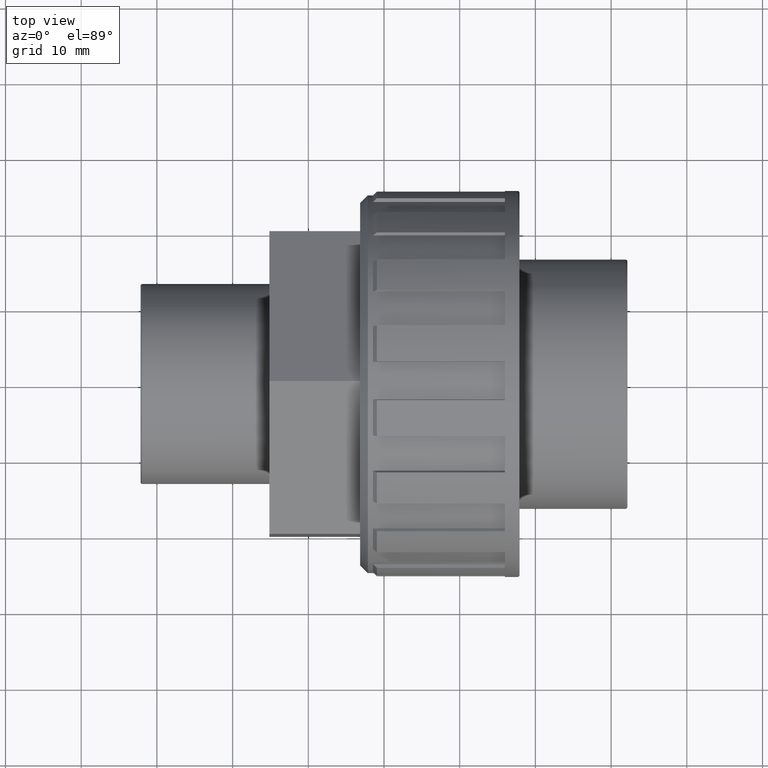
[diagram: clean part render]
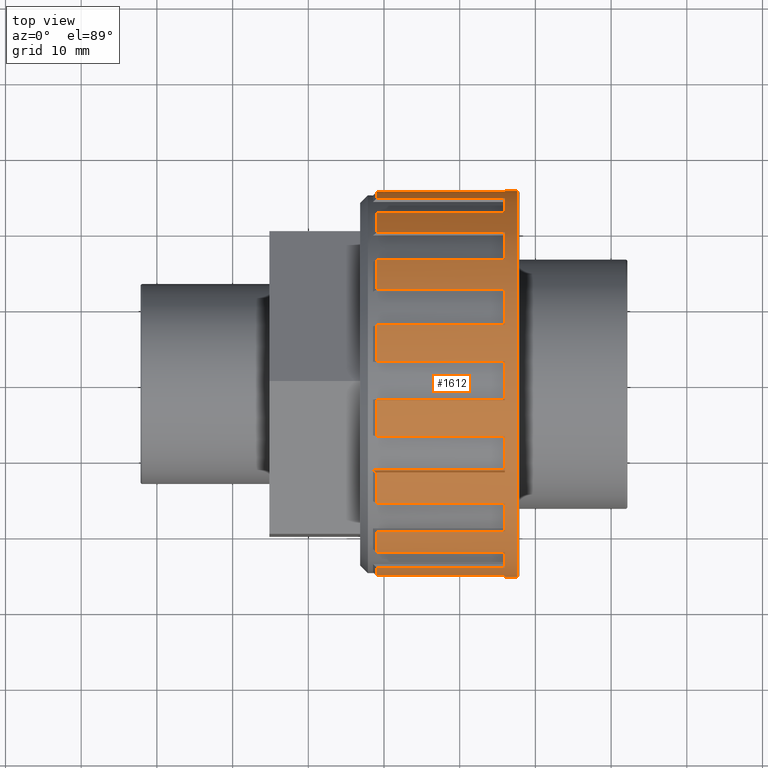
[diagram: same view with one face highlighted and labeled with its STEP entity id]
A machine part, top view. The second image highlights one B-rep face of the part: STEP entity #1612.
In plain terms, the highlighted cylindrical surface (bore or boss wall) has radius 25.5 mm, axis along (-1, -0, 0).
Its self-contained STEP definition (entity closure, byte-faithful):
#37=FACE_BOUND('',#295,.T.);
#59=CYLINDRICAL_SURFACE('',#1736,25.5);
#68=CIRCLE('',#1665,25.5);
#70=CIRCLE('',#1670,25.5);
#72=CIRCLE('',#1675,25.5);
#74=CIRCLE('',#1680,25.5);
#76=CIRCLE('',#1685,25.5);
#78=CIRCLE('',#1690,25.5);
#80=CIRCLE('',#1695,25.5);
#82=CIRCLE('',#1700,25.5);
#84=CIRCLE('',#1705,25.5);
#86=CIRCLE('',#1710,25.5);
#88=CIRCLE('',#1715,25.5);
#90=CIRCLE('',#1720,25.5);
#92=CIRCLE('',#1725,25.5);
#94=CIRCLE('',#1730,25.5);
#96=CIRCLE('',#1735,25.5);
#97=CIRCLE('',#1737,25.5);
#98=CIRCLE('',#1738,25.5);
#99=CIRCLE('',#1739,25.5);
#100=CIRCLE('',#1740,25.5);
#101=CIRCLE('',#1741,25.5);
#102=CIRCLE('',#1742,25.5);
#103=CIRCLE('',#1743,25.5);
#104=CIRCLE('',#1744,25.5);
#105=CIRCLE('',#1745,25.5);
#106=CIRCLE('',#1746,25.5);
#107=CIRCLE('',#1747,25.5);
#108=CIRCLE('',#1748,25.5);
#109=CIRCLE('',#1749,25.5);
#110=CIRCLE('',#1750,25.5);
#111=CIRCLE('',#1751,25.5);
#112=CIRCLE('',#1752,25.5);
#113=CIRCLE('',#1753,25.5);
#114=CIRCLE('',#1754,25.5);
#202=FACE_OUTER_BOUND('',#294,.T.);
#294=EDGE_LOOP('',(#1243,#1244,#1245,#1246,#1247,#1248,#1249,#1250,#1251,
#1252,#1253,#1254,#1255,#1256,#1257,#1258,#1259,#1260,#1261,#1262,#1263,
#1264,#1265,#1266,#1267,#1268,#1269,#1270,#1271,#1272,#1273,#1274,#1275,
#1276,#1277,#1278,#1279,#1280,#1281,#1282,#1283,#1284,#1285,#1286,#1287,
#1288,#1289,#1290,#1291,#1292,#1293,#1294,#1295,#1296,#1297,#1298,#1299,
#1300,#1301,#1302,#1303,#1304,#1305,#1306));
#295=EDGE_LOOP('',(#1307));
#376=LINE('',#2373,#522);
#382=LINE('',#2385,#528);
#384=LINE('',#2394,#530);
#390=LINE('',#2406,#536);
#392=LINE('',#2415,#538);
#398=LINE('',#2427,#544);
#400=LINE('',#2436,#546);
#406=LINE('',#2448,#552);
#408=LINE('',#2457,#554);
#414=LINE('',#2469,#560);
#416=LINE('',#2478,#562);
#422=LINE('',#2490,#568);
#424=LINE('',#2499,#570);
#430=LINE('',#2511,#576);
#432=LINE('',#2520,#578);
#438=LINE('',#2532,#584);
#440=LINE('',#2541,#586);
#446=LINE('',#2553,#592);
#448=LINE('',#2562,#594);
#454=LINE('',#2574,#600);
#456=LINE('',#2583,#602);
#462=LINE('',#2595,#608);
#464=LINE('',#2604,#610);
#470=LINE('',#2616,#616);
#472=LINE('',#2625,#618);
#478=LINE('',#2637,#624);
#480=LINE('',#2646,#626);
#486=LINE('',#2658,#632);
#488=LINE('',#2667,#634);
#494=LINE('',#2679,#640);
#495=LINE('',#2701,#641);
#496=LINE('',#2705,#642);
#522=VECTOR('',#1866,16.905);
#528=VECTOR('',#1874,16.905);
#530=VECTOR('',#1884,16.905);
#536=VECTOR('',#1892,16.905);
#538=VECTOR('',#1902,16.905);
#544=VECTOR('',#1910,16.905);
#546=VECTOR('',#1920,16.905);
#552=VECTOR('',#1928,16.905);
#554=VECTOR('',#1938,16.905);
#560=VECTOR('',#1946,16.905);
#562=VECTOR('',#1956,16.905);
#568=VECTOR('',#1964,16.905);
#570=VECTOR('',#1974,16.905);
#576=VECTOR('',#1982,16.905);
#578=VECTOR('',#1992,16.905);
#584=VECTOR('',#2000,16.905);
#586=VECTOR('',#2010,16.905);
#592=VECTOR('',#2018,16.905);
#594=VECTOR('',#2028,16.905);
#600=VECTOR('',#2036,16.905);
#602=VECTOR('',#2046,16.905);
#608=VECTOR('',#2054,16.905);
#610=VECTOR('',#2064,16.905);
#616=VECTOR('',#2072,16.905);
#618=VECTOR('',#2082,16.905);
#624=VECTOR('',#2090,16.905);
#626=VECTOR('',#2100,16.905);
#632=VECTOR('',#2108,16.905);
#634=VECTOR('',#2118,16.905);
#640=VECTOR('',#2126,16.905);
#641=VECTOR('',#2165,16.905);
#642=VECTOR('',#2168,16.905);
#661=VERTEX_POINT('',#2369);
#663=VERTEX_POINT('',#2372);
#666=VERTEX_POINT('',#2379);
#668=VERTEX_POINT('',#2383);
#669=VERTEX_POINT('',#2390);
#671=VERTEX_POINT('',#2393);
#674=VERTEX_POINT('',#2400);
#676=VERTEX_POINT('',#2404);
#677=VERTEX_POINT('',#2411);
#679=VERTEX_POINT('',#2414);
#682=VERTEX_POINT('',#2421);
#684=VERTEX_POINT('',#2425);
#685=VERTEX_POINT('',#2432);
#687=VERTEX_POINT('',#2435);
#690=VERTEX_POINT('',#2442);
#692=VERTEX_POINT('',#2446);
#693=VERTEX_POINT('',#2453);
#695=VERTEX_POINT('',#2456);
#698=VERTEX_POINT('',#2463);
#700=VERTEX_POINT('',#2467);
#701=VERTEX_POINT('',#2474);
#703=VERTEX_POINT('',#2477);
#706=VERTEX_POINT('',#2484);
#708=VERTEX_POINT('',#2488);
#709=VERTEX_POINT('',#2495);
#711=VERTEX_POINT('',#2498);
#714=VERTEX_POINT('',#2505);
#716=VERTEX_POINT('',#2509);
#717=VERTEX_POINT('',#2516);
#719=VERTEX_POINT('',#2519);
#722=VERTEX_POINT('',#2526);
#724=VERTEX_POINT('',#2530);
#725=VERTEX_POINT('',#2537);
#727=VERTEX_POINT('',#2540);
#730=VERTEX_POINT('',#2547);
#732=VERTEX_POINT('',#2551);
#733=VERTEX_POINT('',#2558);
#735=VERTEX_POINT('',#2561);
#738=VERTEX_POINT('',#2568);
#740=VERTEX_POINT('',#2572);
#741=VERTEX_POINT('',#2579);
#743=VERTEX_POINT('',#2582);
#746=VERTEX_POINT('',#2589);
#748=VERTEX_POINT('',#2593);
#749=VERTEX_POINT('',#2600);
#751=VERTEX_POINT('',#2603);
#754=VERTEX_POINT('',#2610);
#756=VERTEX_POINT('',#2614);
#757=VERTEX_POINT('',#2621);
#759=VERTEX_POINT('',#2624);
#762=VERTEX_POINT('',#2631);
#764=VERTEX_POINT('',#2635);
#765=VERTEX_POINT('',#2642);
#767=VERTEX_POINT('',#2645);
#770=VERTEX_POINT('',#2652);
#772=VERTEX_POINT('',#2656);
#773=VERTEX_POINT('',#2663);
#775=VERTEX_POINT('',#2666);
#778=VERTEX_POINT('',#2673);
#780=VERTEX_POINT('',#2677);
#781=VERTEX_POINT('',#2698);
#782=VERTEX_POINT('',#2700);
#783=VERTEX_POINT('',#2702);
#784=VERTEX_POINT('',#2704);
#785=VERTEX_POINT('',#2707);
#828=EDGE_CURVE('',#663,#661,#376,.T.);
#834=EDGE_CURVE('',#666,#668,#382,.T.);
#836=EDGE_CURVE('',#668,#663,#68,.T.);
#838=EDGE_CURVE('',#671,#669,#384,.T.);
#844=EDGE_CURVE('',#674,#676,#390,.T.);
#846=EDGE_CURVE('',#676,#671,#70,.T.);
#848=EDGE_CURVE('',#679,#677,#392,.T.);
#854=EDGE_CURVE('',#682,#684,#398,.T.);
#856=EDGE_CURVE('',#684,#679,#72,.T.);
#858=EDGE_CURVE('',#687,#685,#400,.T.);
#864=EDGE_CURVE('',#690,#692,#406,.T.);
#866=EDGE_CURVE('',#692,#687,#74,.T.);
#868=EDGE_CURVE('',#695,#693,#408,.T.);
#874=EDGE_CURVE('',#698,#700,#414,.T.);
#876=EDGE_CURVE('',#700,#695,#76,.T.);
#878=EDGE_CURVE('',#703,#701,#416,.T.);
#884=EDGE_CURVE('',#706,#708,#422,.T.);
#886=EDGE_CURVE('',#708,#703,#78,.T.);
#888=EDGE_CURVE('',#711,#709,#424,.T.);
#894=EDGE_CURVE('',#714,#716,#430,.T.);
#896=EDGE_CURVE('',#716,#711,#80,.T.);
#898=EDGE_CURVE('',#719,#717,#432,.T.);
#904=EDGE_CURVE('',#722,#724,#438,.T.);
#906=EDGE_CURVE('',#724,#719,#82,.T.);
#908=EDGE_CURVE('',#727,#725,#440,.T.);
#914=EDGE_CURVE('',#730,#732,#446,.T.);
#916=EDGE_CURVE('',#732,#727,#84,.T.);
#918=EDGE_CURVE('',#735,#733,#448,.T.);
#924=EDGE_CURVE('',#738,#740,#454,.T.);
#926=EDGE_CURVE('',#740,#735,#86,.T.);
#928=EDGE_CURVE('',#743,#741,#456,.T.);
#934=EDGE_CURVE('',#746,#748,#462,.T.);
#936=EDGE_CURVE('',#748,#743,#88,.T.);
#938=EDGE_CURVE('',#751,#749,#464,.T.);
#944=EDGE_CURVE('',#754,#756,#470,.T.);
#946=EDGE_CURVE('',#756,#751,#90,.T.);
#948=EDGE_CURVE('',#759,#757,#472,.T.);
#954=EDGE_CURVE('',#762,#764,#478,.T.);
#956=EDGE_CURVE('',#764,#759,#92,.T.);
#958=EDGE_CURVE('',#767,#765,#480,.T.);
#964=EDGE_CURVE('',#770,#772,#486,.T.);
#966=EDGE_CURVE('',#772,#767,#94,.T.);
#968=EDGE_CURVE('',#775,#773,#488,.T.);
#974=EDGE_CURVE('',#778,#780,#494,.T.);
#976=EDGE_CURVE('',#780,#775,#96,.T.);
#977=EDGE_CURVE('',#674,#661,#97,.T.);
#978=EDGE_CURVE('',#682,#669,#98,.T.);
#979=EDGE_CURVE('',#690,#677,#99,.T.);
#980=EDGE_CURVE('',#698,#685,#100,.T.);
#981=EDGE_CURVE('',#706,#693,#101,.T.);
#982=EDGE_CURVE('',#714,#701,#102,.T.);
#983=EDGE_CURVE('',#722,#709,#103,.T.);
#984=EDGE_CURVE('',#730,#717,#104,.T.);
#985=EDGE_CURVE('',#738,#725,#105,.T.);
#986=EDGE_CURVE('',#746,#733,#106,.T.);
#987=EDGE_CURVE('',#754,#741,#107,.T.);
#988=EDGE_CURVE('',#762,#749,#108,.T.);
#989=EDGE_CURVE('',#770,#757,#109,.T.);
#990=EDGE_CURVE('',#778,#765,#110,.T.);
#991=EDGE_CURVE('',#781,#773,#111,.T.);
#992=EDGE_CURVE('',#781,#782,#495,.T.);
#993=EDGE_CURVE('',#782,#783,#112,.T.);
#994=EDGE_CURVE('',#783,#784,#496,.T.);
#995=EDGE_CURVE('',#666,#784,#113,.T.);
#996=EDGE_CURVE('',#785,#785,#114,.T.);
#1243=ORIENTED_EDGE('',*,*,#834,.T.);
#1244=ORIENTED_EDGE('',*,*,#836,.T.);
#1245=ORIENTED_EDGE('',*,*,#828,.T.);
#1246=ORIENTED_EDGE('',*,*,#977,.F.);
#1247=ORIENTED_EDGE('',*,*,#844,.T.);
#1248=ORIENTED_EDGE('',*,*,#846,.T.);
#1249=ORIENTED_EDGE('',*,*,#838,.T.);
#1250=ORIENTED_EDGE('',*,*,#978,.F.);
#1251=ORIENTED_EDGE('',*,*,#854,.T.);
#1252=ORIENTED_EDGE('',*,*,#856,.T.);
#1253=ORIENTED_EDGE('',*,*,#848,.T.);
#1254=ORIENTED_EDGE('',*,*,#979,.F.);
#1255=ORIENTED_EDGE('',*,*,#864,.T.);
#1256=ORIENTED_EDGE('',*,*,#866,.T.);
#1257=ORIENTED_EDGE('',*,*,#858,.T.);
#1258=ORIENTED_EDGE('',*,*,#980,.F.);
#1259=ORIENTED_EDGE('',*,*,#874,.T.);
#1260=ORIENTED_EDGE('',*,*,#876,.T.);
#1261=ORIENTED_EDGE('',*,*,#868,.T.);
#1262=ORIENTED_EDGE('',*,*,#981,.F.);
#1263=ORIENTED_EDGE('',*,*,#884,.T.);
#1264=ORIENTED_EDGE('',*,*,#886,.T.);
#1265=ORIENTED_EDGE('',*,*,#878,.T.);
#1266=ORIENTED_EDGE('',*,*,#982,.F.);
#1267=ORIENTED_EDGE('',*,*,#894,.T.);
#1268=ORIENTED_EDGE('',*,*,#896,.T.);
#1269=ORIENTED_EDGE('',*,*,#888,.T.);
#1270=ORIENTED_EDGE('',*,*,#983,.F.);
#1271=ORIENTED_EDGE('',*,*,#904,.T.);
#1272=ORIENTED_EDGE('',*,*,#906,.T.);
#1273=ORIENTED_EDGE('',*,*,#898,.T.);
#1274=ORIENTED_EDGE('',*,*,#984,.F.);
#1275=ORIENTED_EDGE('',*,*,#914,.T.);
#1276=ORIENTED_EDGE('',*,*,#916,.T.);
#1277=ORIENTED_EDGE('',*,*,#908,.T.);
#1278=ORIENTED_EDGE('',*,*,#985,.F.);
#1279=ORIENTED_EDGE('',*,*,#924,.T.);
#1280=ORIENTED_EDGE('',*,*,#926,.T.);
#1281=ORIENTED_EDGE('',*,*,#918,.T.);
#1282=ORIENTED_EDGE('',*,*,#986,.F.);
#1283=ORIENTED_EDGE('',*,*,#934,.T.);
#1284=ORIENTED_EDGE('',*,*,#936,.T.);
#1285=ORIENTED_EDGE('',*,*,#928,.T.);
#1286=ORIENTED_EDGE('',*,*,#987,.F.);
#1287=ORIENTED_EDGE('',*,*,#944,.T.);
#1288=ORIENTED_EDGE('',*,*,#946,.T.);
#1289=ORIENTED_EDGE('',*,*,#938,.T.);
#1290=ORIENTED_EDGE('',*,*,#988,.F.);
#1291=ORIENTED_EDGE('',*,*,#954,.T.);
#1292=ORIENTED_EDGE('',*,*,#956,.T.);
#1293=ORIENTED_EDGE('',*,*,#948,.T.);
#1294=ORIENTED_EDGE('',*,*,#989,.F.);
#1295=ORIENTED_EDGE('',*,*,#964,.T.);
#1296=ORIENTED_EDGE('',*,*,#966,.T.);
#1297=ORIENTED_EDGE('',*,*,#958,.T.);
#1298=ORIENTED_EDGE('',*,*,#990,.F.);
#1299=ORIENTED_EDGE('',*,*,#974,.T.);
#1300=ORIENTED_EDGE('',*,*,#976,.T.);
#1301=ORIENTED_EDGE('',*,*,#968,.T.);
#1302=ORIENTED_EDGE('',*,*,#991,.F.);
#1303=ORIENTED_EDGE('',*,*,#992,.T.);
#1304=ORIENTED_EDGE('',*,*,#993,.T.);
#1305=ORIENTED_EDGE('',*,*,#994,.T.);
#1306=ORIENTED_EDGE('',*,*,#995,.F.);
#1307=ORIENTED_EDGE('',*,*,#996,.F.);
#1612=ADVANCED_FACE('',(#202,#37),#59,.T.);
#1665=AXIS2_PLACEMENT_3D('',#2388,#1879,#1880);
#1670=AXIS2_PLACEMENT_3D('',#2409,#1897,#1898);
#1675=AXIS2_PLACEMENT_3D('',#2430,#1915,#1916);
#1680=AXIS2_PLACEMENT_3D('',#2451,#1933,#1934);
#1685=AXIS2_PLACEMENT_3D('',#2472,#1951,#1952);
#1690=AXIS2_PLACEMENT_3D('',#2493,#1969,#1970);
#1695=AXIS2_PLACEMENT_3D('',#2514,#1987,#1988);
#1700=AXIS2_PLACEMENT_3D('',#2535,#2005,#2006);
#1705=AXIS2_PLACEMENT_3D('',#2556,#2023,#2024);
#1710=AXIS2_PLACEMENT_3D('',#2577,#2041,#2042);
#1715=AXIS2_PLACEMENT_3D('',#2598,#2059,#2060);
#1720=AXIS2_PLACEMENT_3D('',#2619,#2077,#2078);
#1725=AXIS2_PLACEMENT_3D('',#2640,#2095,#2096);
#1730=AXIS2_PLACEMENT_3D('',#2661,#2113,#2114);
#1735=AXIS2_PLACEMENT_3D('',#2682,#2131,#2132);
#1736=AXIS2_PLACEMENT_3D('',#2683,#2133,#2134);
#1737=AXIS2_PLACEMENT_3D('',#2684,#2135,#2136);
#1738=AXIS2_PLACEMENT_3D('',#2685,#2137,#2138);
#1739=AXIS2_PLACEMENT_3D('',#2686,#2139,#2140);
#1740=AXIS2_PLACEMENT_3D('',#2687,#2141,#2142);
#1741=AXIS2_PLACEMENT_3D('',#2688,#2143,#2144);
#1742=AXIS2_PLACEMENT_3D('',#2689,#2145,#2146);
#1743=AXIS2_PLACEMENT_3D('',#2690,#2147,#2148);
#1744=AXIS2_PLACEMENT_3D('',#2691,#2149,#2150);
#1745=AXIS2_PLACEMENT_3D('',#2692,#2151,#2152);
#1746=AXIS2_PLACEMENT_3D('',#2693,#2153,#2154);
#1747=AXIS2_PLACEMENT_3D('',#2694,#2155,#2156);
#1748=AXIS2_PLACEMENT_3D('',#2695,#2157,#2158);
#1749=AXIS2_PLACEMENT_3D('',#2696,#2159,#2160);
#1750=AXIS2_PLACEMENT_3D('',#2697,#2161,#2162);
#1751=AXIS2_PLACEMENT_3D('',#2699,#2163,#2164);
#1752=AXIS2_PLACEMENT_3D('',#2703,#2166,#2167);
#1753=AXIS2_PLACEMENT_3D('',#2706,#2169,#2170);
#1754=AXIS2_PLACEMENT_3D('',#2708,#2171,#2172);
#1866=DIRECTION('',(-1.,-4.89858719658941E-16,0.));
#1874=DIRECTION('',(1.,4.89858719658941E-16,0.));
#1879=DIRECTION('center_axis',(1.,4.90924831958475E-16,-5.35970846648673E-18));
#1880=DIRECTION('ref_axis',(5.03864312828633E-16,-1.,0.));
#1884=DIRECTION('',(-1.,-4.89858719658941E-16,0.));
#1892=DIRECTION('',(1.,4.89858719658941E-16,0.));
#1897=DIRECTION('center_axis',(1.,4.93960862923804E-16,-9.90344990482907E-18));
#1898=DIRECTION('ref_axis',(5.03864312828633E-16,-1.,0.));
#1902=DIRECTION('',(-1.,-4.89858719658941E-16,0.));
#1910=DIRECTION('',(1.,4.89858719658941E-16,0.));
#1915=DIRECTION('center_axis',(1.,4.98504604362146E-16,-1.2939480870158E-17));
#1916=DIRECTION('ref_axis',(5.03864312828633E-16,-1.,0.));
#1920=DIRECTION('',(-1.,-4.89858719658941E-16,0.));
#1928=DIRECTION('',(1.,4.89858719658941E-16,0.));
#1933=DIRECTION('center_axis',(1.,5.03864312828633E-16,-1.40055931696918E-17));
#1934=DIRECTION('ref_axis',(5.03864312828633E-16,-1.,0.));
#1938=DIRECTION('',(-1.,-4.89858719658941E-16,0.));
#1946=DIRECTION('',(1.,4.89858719658941E-16,0.));
#1951=DIRECTION('center_axis',(1.,5.09224021295119E-16,-1.2939480870158E-17));
#1952=DIRECTION('ref_axis',(5.03864312828633E-16,-1.,0.));
#1956=DIRECTION('',(-1.,-4.89858719658941E-16,0.));
#1964=DIRECTION('',(1.,4.89858719658941E-16,0.));
#1969=DIRECTION('center_axis',(1.,5.13767762733462E-16,-9.90344990482904E-18));
#1970=DIRECTION('ref_axis',(5.03864312828633E-16,-1.,0.));
#1974=DIRECTION('',(-1.,-4.89858719658941E-16,0.));
#1982=DIRECTION('',(1.,4.89858719658941E-16,0.));
#1987=DIRECTION('center_axis',(1.,5.16803793698791E-16,-5.35970846648665E-18));
#1988=DIRECTION('ref_axis',(5.03864312828633E-16,-1.,0.));
#1992=DIRECTION('',(-1.,-4.89858719658941E-16,0.));
#2000=DIRECTION('',(1.,4.89858719658941E-16,0.));
#2005=DIRECTION('center_axis',(1.,5.17869905998324E-16,6.31705021759013E-32));
#2006=DIRECTION('ref_axis',(5.03864312828633E-16,-1.,0.));
#2010=DIRECTION('',(-1.,-4.89858719658941E-16,0.));
#2018=DIRECTION('',(1.,4.89858719658941E-16,0.));
#2023=DIRECTION('center_axis',(1.,5.16803793698791E-16,5.35970846648675E-18));
#2024=DIRECTION('ref_axis',(5.03864312828633E-16,-1.,0.));
#2028=DIRECTION('',(-1.,-4.89858719658941E-16,0.));
#2036=DIRECTION('',(1.,4.89858719658941E-16,0.));
#2041=DIRECTION('center_axis',(1.,5.13767762733462E-16,9.90344990482896E-18));
#2042=DIRECTION('ref_axis',(5.03864312828633E-16,-1.,0.));
#2046=DIRECTION('',(-1.,-4.89858719658941E-16,0.));
#2054=DIRECTION('',(1.,4.89858719658941E-16,0.));
#2059=DIRECTION('center_axis',(1.,5.09224021295119E-16,1.29394808701581E-17));
#2060=DIRECTION('ref_axis',(5.03864312828633E-16,-1.,0.));
#2064=DIRECTION('',(-1.,-4.89858719658941E-16,0.));
#2072=DIRECTION('',(1.,4.89858719658941E-16,0.));
#2077=DIRECTION('center_axis',(1.,5.03864312828633E-16,1.40055931696917E-17));
#2078=DIRECTION('ref_axis',(5.03864312828633E-16,-1.,0.));
#2082=DIRECTION('',(-1.,-4.89858719658941E-16,0.));
#2090=DIRECTION('',(1.,4.89858719658941E-16,0.));
#2095=DIRECTION('center_axis',(1.,4.98504604362146E-16,1.2939480870158E-17));
#2096=DIRECTION('ref_axis',(5.03864312828633E-16,-1.,0.));
#2100=DIRECTION('',(-1.,-4.89858719658941E-16,0.));
#2108=DIRECTION('',(1.,4.89858719658941E-16,0.));
#2113=DIRECTION('center_axis',(1.,4.93960862923804E-16,9.90344990482904E-18));
#2114=DIRECTION('ref_axis',(5.03864312828633E-16,-1.,0.));
#2118=DIRECTION('',(-1.,-4.89858719658941E-16,0.));
#2126=DIRECTION('',(1.,4.89858719658941E-16,0.));
#2131=DIRECTION('center_axis',(1.,4.90924831958475E-16,5.3597084664867E-18));
#2132=DIRECTION('ref_axis',(5.03864312828633E-16,-1.,0.));
#2133=DIRECTION('center_axis',(-1.,-4.89858719658941E-16,0.));
#2134=DIRECTION('ref_axis',(5.03864312828633E-16,-1.,0.));
#2135=DIRECTION('center_axis',(-1.,-4.89858719658941E-16,0.));
#2136=DIRECTION('ref_axis',(5.03864312828633E-16,-1.,0.));
#2137=DIRECTION('center_axis',(-1.,-4.89858719658941E-16,0.));
#2138=DIRECTION('ref_axis',(5.03864312828633E-16,-1.,0.));
#2139=DIRECTION('center_axis',(-1.,-4.89858719658941E-16,0.));
#2140=DIRECTION('ref_axis',(5.03864312828633E-16,-1.,0.));
#2141=DIRECTION('center_axis',(-1.,-4.89858719658941E-16,0.));
#2142=DIRECTION('ref_axis',(5.03864312828633E-16,-1.,0.));
#2143=DIRECTION('center_axis',(-1.,-4.89858719658941E-16,0.));
#2144=DIRECTION('ref_axis',(5.03864312828633E-16,-1.,0.));
#2145=DIRECTION('center_axis',(-1.,-4.89858719658941E-16,0.));
#2146=DIRECTION('ref_axis',(5.03864312828633E-16,-1.,0.));
#2147=DIRECTION('center_axis',(-1.,-4.89858719658941E-16,0.));
#2148=DIRECTION('ref_axis',(5.03864312828633E-16,-1.,0.));
#2149=DIRECTION('center_axis',(-1.,-4.89858719658941E-16,0.));
#2150=DIRECTION('ref_axis',(5.03864312828633E-16,-1.,0.));
#2151=DIRECTION('center_axis',(-1.,-4.89858719658941E-16,0.));
#2152=DIRECTION('ref_axis',(5.03864312828633E-16,-1.,0.));
#2153=DIRECTION('center_axis',(-1.,-4.89858719658941E-16,0.));
#2154=DIRECTION('ref_axis',(5.03864312828633E-16,-1.,0.));
#2155=DIRECTION('center_axis',(-1.,-4.89858719658941E-16,0.));
#2156=DIRECTION('ref_axis',(5.03864312828633E-16,-1.,0.));
#2157=DIRECTION('center_axis',(-1.,-4.89858719658941E-16,0.));
#2158=DIRECTION('ref_axis',(5.03864312828633E-16,-1.,0.));
#2159=DIRECTION('center_axis',(-1.,-4.89858719658941E-16,0.));
#2160=DIRECTION('ref_axis',(5.03864312828633E-16,-1.,0.));
#2161=DIRECTION('center_axis',(-1.,-4.89858719658941E-16,0.));
#2162=DIRECTION('ref_axis',(5.03864312828633E-16,-1.,0.));
#2163=DIRECTION('center_axis',(-1.,-4.89858719658941E-16,0.));
#2164=DIRECTION('ref_axis',(5.03864312828633E-16,-1.,0.));
#2165=DIRECTION('',(1.,4.89858719658941E-16,0.));
#2166=DIRECTION('center_axis',(1.,4.89858719658941E-16,0.));
#2167=DIRECTION('ref_axis',(5.03864312828633E-16,-1.,0.));
#2168=DIRECTION('',(-1.,-4.89858719658941E-16,0.));
#2169=DIRECTION('center_axis',(-1.,-4.89858719658941E-16,0.));
#2170=DIRECTION('ref_axis',(5.03864312828633E-16,-1.,0.));
#2171=DIRECTION('center_axis',(1.,4.89858719658941E-16,0.));
#2172=DIRECTION('ref_axis',(-4.89804275569922E-16,1.,6.12323399573677E-17));
#2369=CARTESIAN_POINT('',(-0.940000000000026,22.46499471781,12.0654056015025));
#2372=CARTESIAN_POINT('',(15.965,22.4649947178101,12.0654056015025));
#2373=CARTESIAN_POINT('',(8.22499999999998,22.4649947178101,12.0654056015025));
#2379=CARTESIAN_POINT('',(-0.940000000000034,24.416680222872,7.35361998569492));
#2383=CARTESIAN_POINT('',(15.965,24.416680222872,7.35361998569492));
#2385=CARTESIAN_POINT('',(8.22499999999998,24.416680222872,7.35361998569492));
#2388=CARTESIAN_POINT('Origin',(15.965,1.37264536482431E-14,0.));
#2390=CARTESIAN_POINT('',(-0.940000000000027,16.1377179892989,19.7439625733503));
#2393=CARTESIAN_POINT('',(15.965,16.1377179892989,19.7439625733503));
#2394=CARTESIAN_POINT('',(8.22499999999998,16.1377179892989,19.7439625733503));
#2400=CARTESIAN_POINT('',(-0.940000000000025,19.7439625733503,16.1377179892989));
#2404=CARTESIAN_POINT('',(15.965,19.7439625733503,16.137717989299));
#2406=CARTESIAN_POINT('',(8.22499999999998,19.7439625733503,16.1377179892989));
#2409=CARTESIAN_POINT('Origin',(15.965,1.37264536482431E-14,0.));
#2411=CARTESIAN_POINT('',(-0.940000000000021,7.35361998569489,24.416680222872));
#2414=CARTESIAN_POINT('',(15.965,7.3536199856949,24.416680222872));
#2415=CARTESIAN_POINT('',(8.22499999999999,7.3536199856949,24.416680222872));
#2421=CARTESIAN_POINT('',(-0.940000000000026,12.0654056015025,22.4649947178101));
#2425=CARTESIAN_POINT('',(15.965,12.0654056015025,22.4649947178101));
#2427=CARTESIAN_POINT('',(8.22499999999998,12.0654056015025,22.4649947178101));
#2430=CARTESIAN_POINT('Origin',(15.965,1.37264536482431E-14,0.));
#2432=CARTESIAN_POINT('',(-0.940000000000019,-2.55000000000002,25.3721796462188));
#2435=CARTESIAN_POINT('',(15.965,-2.55000000000001,25.3721796462188));
#2436=CARTESIAN_POINT('',(8.22499999999999,-2.55000000000002,25.3721796462188));
#2442=CARTESIAN_POINT('',(-0.940000000000017,2.54999999999998,25.3721796462188));
#2446=CARTESIAN_POINT('',(15.965,2.54999999999999,25.3721796462188));
#2448=CARTESIAN_POINT('',(8.22499999999999,2.54999999999998,25.3721796462188));
#2451=CARTESIAN_POINT('Origin',(15.965,1.37264536482431E-14,0.));
#2453=CARTESIAN_POINT('',(-0.940000000000014,-12.0654056015025,22.46499471781));
#2456=CARTESIAN_POINT('',(15.965,-12.0654056015025,22.46499471781));
#2457=CARTESIAN_POINT('',(8.22499999999999,-12.0654056015025,22.46499471781));
#2463=CARTESIAN_POINT('',(-0.940000000000014,-7.35361998569492,24.416680222872));
#2467=CARTESIAN_POINT('',(15.965,-7.35361998569491,24.416680222872));
#2469=CARTESIAN_POINT('',(8.22499999999999,-7.35361998569491,24.416680222872));
#2472=CARTESIAN_POINT('Origin',(15.965,1.37264536482431E-14,0.));
#2474=CARTESIAN_POINT('',(-0.940000000000006,-19.7439625733503,16.1377179892989));
#2477=CARTESIAN_POINT('',(15.965,-19.7439625733503,16.1377179892989));
#2478=CARTESIAN_POINT('',(8.225,-19.7439625733503,16.1377179892989));
#2484=CARTESIAN_POINT('',(-0.940000000000011,-16.1377179892989,19.7439625733503));
#2488=CARTESIAN_POINT('',(15.965,-16.1377179892989,19.7439625733503));
#2490=CARTESIAN_POINT('',(8.225,-16.1377179892989,19.7439625733503));
#2493=CARTESIAN_POINT('Origin',(15.965,1.37264536482431E-14,0.));
#2495=CARTESIAN_POINT('',(-0.940000000000001,-24.416680222872,7.35361998569489));
#2498=CARTESIAN_POINT('',(15.965,-24.416680222872,7.35361998569489));
#2499=CARTESIAN_POINT('',(8.225,-24.416680222872,7.35361998569489));
#2505=CARTESIAN_POINT('',(-0.940000000000009,-22.46499471781,12.0654056015025));
#2509=CARTESIAN_POINT('',(15.965,-22.46499471781,12.0654056015025));
#2511=CARTESIAN_POINT('',(8.225,-22.4649947178101,12.0654056015025));
#2514=CARTESIAN_POINT('Origin',(15.965,1.37264536482431E-14,0.));
#2516=CARTESIAN_POINT('',(-0.940000000000008,-25.3721796462188,-2.55000000000002));
#2519=CARTESIAN_POINT('',(15.965,-25.3721796462188,-2.55000000000001));
#2520=CARTESIAN_POINT('',(8.225,-25.3721796462188,-2.55000000000002));
#2526=CARTESIAN_POINT('',(-0.940000000000004,-25.3721796462188,2.54999999999999));
#2530=CARTESIAN_POINT('',(15.965,-25.3721796462188,2.54999999999999));
#2532=CARTESIAN_POINT('',(8.225,-25.3721796462188,2.54999999999999));
#2535=CARTESIAN_POINT('Origin',(15.965,1.37264536482431E-14,0.));
#2537=CARTESIAN_POINT('',(-0.939999999999998,-22.46499471781,-12.0654056015025));
#2540=CARTESIAN_POINT('',(15.965,-22.46499471781,-12.0654056015025));
#2541=CARTESIAN_POINT('',(8.225,-22.46499471781,-12.0654056015025));
#2547=CARTESIAN_POINT('',(-0.940000000000005,-24.416680222872,-7.35361998569491));
#2551=CARTESIAN_POINT('',(15.965,-24.416680222872,-7.35361998569492));
#2553=CARTESIAN_POINT('',(8.225,-24.416680222872,-7.35361998569492));
#2556=CARTESIAN_POINT('Origin',(15.965,1.37264536482431E-14,0.));
#2558=CARTESIAN_POINT('',(-0.940000000000008,-16.1377179892989,-19.7439625733503));
#2561=CARTESIAN_POINT('',(15.965,-16.1377179892989,-19.7439625733503));
#2562=CARTESIAN_POINT('',(8.225,-16.1377179892989,-19.7439625733503));
#2568=CARTESIAN_POINT('',(-0.940000000000012,-19.7439625733503,-16.1377179892989));
#2572=CARTESIAN_POINT('',(15.965,-19.7439625733503,-16.1377179892989));
#2574=CARTESIAN_POINT('',(8.225,-19.7439625733503,-16.1377179892989));
#2577=CARTESIAN_POINT('Origin',(15.965,1.37264536482431E-14,0.));
#2579=CARTESIAN_POINT('',(-0.940000000000005,-7.3536199856949,-24.416680222872));
#2582=CARTESIAN_POINT('',(15.965,-7.35361998569489,-24.416680222872));
#2583=CARTESIAN_POINT('',(8.22499999999999,-7.35361998569489,-24.416680222872));
#2589=CARTESIAN_POINT('',(-0.940000000000008,-12.0654056015025,-22.4649947178101));
#2593=CARTESIAN_POINT('',(15.965,-12.0654056015024,-22.4649947178101));
#2595=CARTESIAN_POINT('',(8.22499999999999,-12.0654056015025,-22.4649947178101));
#2598=CARTESIAN_POINT('Origin',(15.965,1.37264536482431E-14,0.));
#2600=CARTESIAN_POINT('',(-0.940000000000017,2.55000000000001,-25.3721796462188));
#2603=CARTESIAN_POINT('',(15.965,2.55000000000002,-25.3721796462188));
#2604=CARTESIAN_POINT('',(8.22499999999999,2.55000000000002,-25.3721796462188));
#2610=CARTESIAN_POINT('',(-0.940000000000005,-2.54999999999999,-25.3721796462188));
#2614=CARTESIAN_POINT('',(15.965,-2.54999999999998,-25.3721796462188));
#2616=CARTESIAN_POINT('',(8.22499999999999,-2.54999999999998,-25.3721796462188));
#2619=CARTESIAN_POINT('Origin',(15.965,1.37264536482431E-14,0.));
#2621=CARTESIAN_POINT('',(-0.940000000000015,12.0654056015025,-22.4649947178101));
#2624=CARTESIAN_POINT('',(15.965,12.0654056015025,-22.4649947178101));
#2625=CARTESIAN_POINT('',(8.22499999999998,12.0654056015025,-22.46499471781));
#2631=CARTESIAN_POINT('',(-0.940000000000021,7.35361998569492,-24.416680222872));
#2635=CARTESIAN_POINT('',(15.965,7.35361998569492,-24.416680222872));
#2637=CARTESIAN_POINT('',(8.22499999999999,7.35361998569492,-24.416680222872));
#2640=CARTESIAN_POINT('Origin',(15.965,1.37264536482431E-14,0.));
#2642=CARTESIAN_POINT('',(-0.940000000000025,19.7439625733503,-16.1377179892989));
#2645=CARTESIAN_POINT('',(15.965,19.7439625733503,-16.1377179892989));
#2646=CARTESIAN_POINT('',(8.22499999999998,19.7439625733503,-16.1377179892989));
#2652=CARTESIAN_POINT('',(-0.940000000000027,16.1377179892989,-19.7439625733503));
#2656=CARTESIAN_POINT('',(15.965,16.1377179892989,-19.7439625733503));
#2658=CARTESIAN_POINT('',(8.22499999999998,16.1377179892989,-19.7439625733503));
#2661=CARTESIAN_POINT('Origin',(15.965,1.37264536482431E-14,0.));
#2663=CARTESIAN_POINT('',(-0.940000000000025,24.416680222872,-7.3536199856949));
#2666=CARTESIAN_POINT('',(15.965,24.416680222872,-7.3536199856949));
#2667=CARTESIAN_POINT('',(8.22499999999998,24.416680222872,-7.3536199856949));
#2673=CARTESIAN_POINT('',(-0.940000000000026,22.4649947178101,-12.0654056015025));
#2677=CARTESIAN_POINT('',(15.965,22.4649947178101,-12.0654056015025));
#2679=CARTESIAN_POINT('',(8.22499999999998,22.4649947178101,-12.0654056015025));
#2682=CARTESIAN_POINT('Origin',(15.965,1.37264536482431E-14,0.));
#2683=CARTESIAN_POINT('Origin',(8.22499999999999,9.93494715808289E-15,0.));
#2684=CARTESIAN_POINT('Origin',(-0.940000000000012,5.4453919924087E-15,
0.));
#2685=CARTESIAN_POINT('Origin',(-0.940000000000012,5.4453919924087E-15,
0.));
#2686=CARTESIAN_POINT('Origin',(-0.940000000000012,5.4453919924087E-15,
0.));
#2687=CARTESIAN_POINT('Origin',(-0.940000000000012,5.4453919924087E-15,
0.));
#2688=CARTESIAN_POINT('Origin',(-0.940000000000012,5.4453919924087E-15,
0.));
#2689=CARTESIAN_POINT('Origin',(-0.940000000000012,5.4453919924087E-15,
0.));
#2690=CARTESIAN_POINT('Origin',(-0.940000000000012,5.4453919924087E-15,
0.));
#2691=CARTESIAN_POINT('Origin',(-0.940000000000012,5.4453919924087E-15,
0.));
#2692=CARTESIAN_POINT('Origin',(-0.940000000000012,5.4453919924087E-15,
0.));
#2693=CARTESIAN_POINT('Origin',(-0.940000000000012,5.4453919924087E-15,
0.));
#2694=CARTESIAN_POINT('Origin',(-0.940000000000012,5.4453919924087E-15,
0.));
#2695=CARTESIAN_POINT('Origin',(-0.940000000000012,5.4453919924087E-15,
0.));
#2696=CARTESIAN_POINT('Origin',(-0.940000000000012,5.4453919924087E-15,
0.));
#2697=CARTESIAN_POINT('Origin',(-0.940000000000012,5.4453919924087E-15,
0.));
#2698=CARTESIAN_POINT('',(-0.940000000000024,25.3721796462188,-2.55));
#2699=CARTESIAN_POINT('Origin',(-0.940000000000012,5.4453919924087E-15,
0.));
#2700=CARTESIAN_POINT('',(15.965,25.3721796462188,-2.55));
#2701=CARTESIAN_POINT('',(8.22499999999998,25.3721796462188,-2.55));
#2702=CARTESIAN_POINT('',(15.965,25.3721796462188,2.55));
#2703=CARTESIAN_POINT('Origin',(15.965,1.37264536482431E-14,0.));
#2704=CARTESIAN_POINT('',(-0.940000000000024,25.3721796462188,2.55));
#2705=CARTESIAN_POINT('',(8.22499999999998,25.3721796462188,2.55));
#2706=CARTESIAN_POINT('Origin',(-0.940000000000012,5.4453919924087E-15,
0.));
#2707=CARTESIAN_POINT('',(17.65,-25.5,-4.68427400673863E-15));
#2708=CARTESIAN_POINT('Origin',(17.65,1.45518655908684E-14,0.));